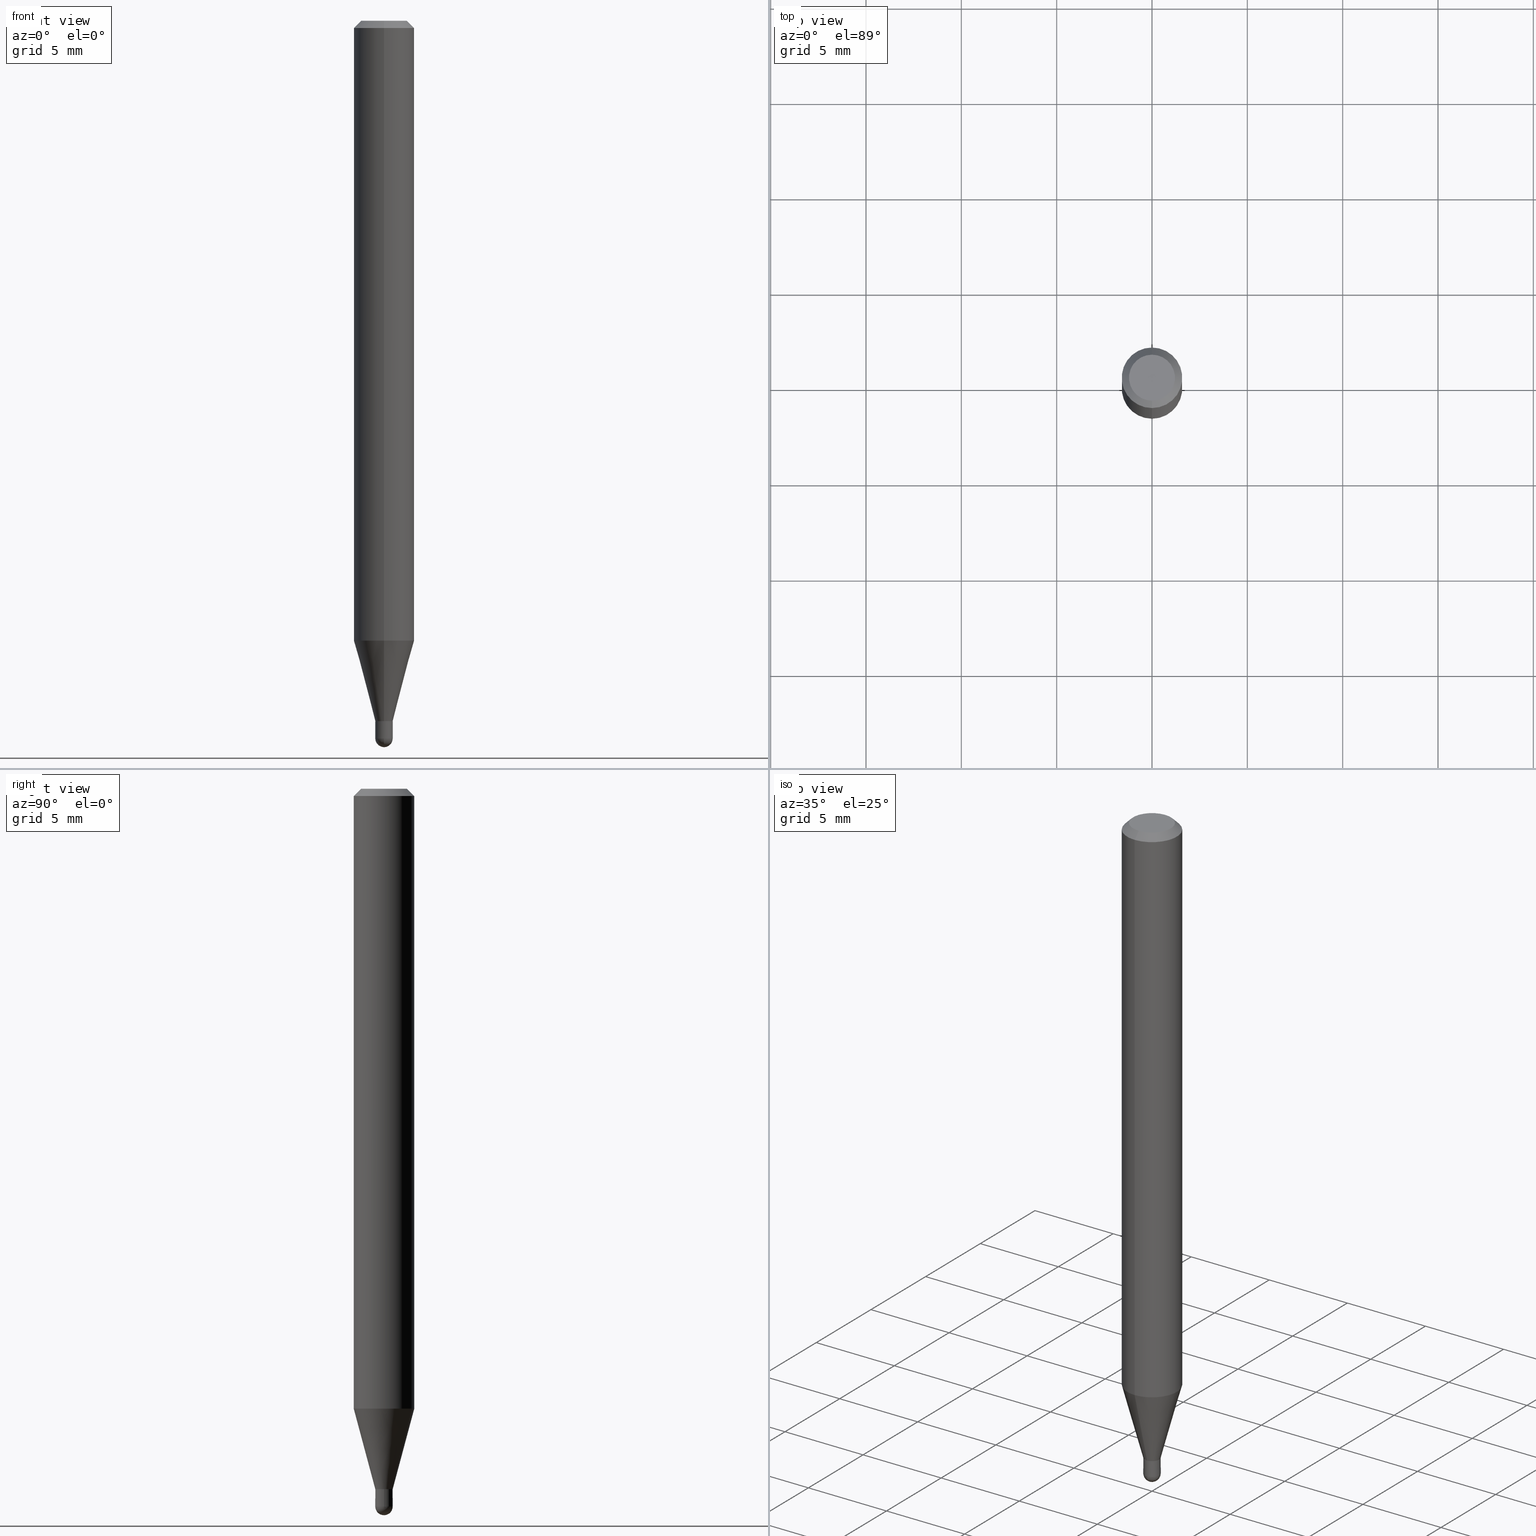
[diagram: canonical four-view strip — front | top / right | iso, engineering-drawing reading convention]
A machine part, canonical four-view strip (front | top / right | iso — engineering-drawing reading convention). The complete STEP part file that produces these views, byte-faithful:
ISO-10303-21;
HEADER;
FILE_DESCRIPTION (( 'STEP AP203' ),
    '1' );
FILE_NAME ('01393.STEP',
    '2024-03-07T20:17:46',
    ( '' ),
    ( '' ),
    'SwSTEP 2.0',
    'SolidWorks 2023',
    '' );
FILE_SCHEMA (( 'CONFIG_CONTROL_DESIGN' ));
ENDSEC;

DATA;
#1 = CC_DESIGN_PERSON_AND_ORGANIZATION_ASSIGNMENT ( #335, #289, ( #371 ) ) ;
#2 = MANIFOLD_SOLID_BREP ( 'Body-Move/Copy2[2]', #9 ) ;
#3 = DATE_TIME_ROLE ( 'creation_date' ) ;
#4 = APPROVAL_ROLE ( '' ) ;
#5 = DIRECTION ( 'NONE',  ( -2.445478890525876859E-29, 3.491466897493240330E-15, 1.000000000000000000 ) ) ;
#6 = CIRCLE ( 'NONE', #180, 0.01799999999999992231 ) ;
#7 = ORIENTED_EDGE ( 'NONE', *, *, #441, .F. ) ;
#8 = CC_DESIGN_APPROVAL ( #211, ( #293 ) ) ;
#9 = CLOSED_SHELL ( 'NONE', ( #398, #179, #162, #192, #154, #71, #419, #474, #144, #227, #459, #254 ) ) ;
#10 = DIRECTION ( 'NONE',  ( -2.445478890525876859E-29, 3.491466897493240330E-15, 1.000000000000000000 ) ) ;
#11 = CONICAL_SURFACE ( 'NONE', #222, 0.06250000000000000000, 0.7853981633974483900 ) ;
#12 = FACE_OUTER_BOUND ( 'NONE', #223, .T. ) ;
#13 = ORIENTED_EDGE ( 'NONE', *, *, #172, .F. ) ;
#14 = EDGE_CURVE ( 'NONE', #255, #416, #169, .T. ) ;
#15 = APPROVAL_DATE_TIME ( #365, #512 ) ;
#16 = ADVANCED_BREP_SHAPE_REPRESENTATION ( '01393', ( #161, #2, #89 ), #47 ) ;
#17 = FACE_OUTER_BOUND ( 'NONE', #378, .T. ) ;
#18 = DIRECTION ( 'NONE',  ( 1.000000000000000000, -6.982962677686280121E-15, 0.000000000000000000 ) ) ;
#19 = DIRECTION ( 'NONE',  ( -2.445478890525876859E-29, 3.491466897493240330E-15, 1.000000000000000000 ) ) ;
#20 = DIRECTION ( 'NONE',  ( -2.445478890525876859E-29, 3.491466897493240330E-15, 1.000000000000000000 ) ) ;
#21 = DIRECTION ( 'NONE',  ( -2.445468806185136597E-29, 3.491481338843145583E-15, 1.000000000000000000 ) ) ;
#22 = EDGE_CURVE ( 'NONE', #140, #220, #475, .T. ) ;
#23 = CARTESIAN_POINT ( 'NONE',  ( 3.624184770766373010E-29, -5.174375344165542471E-15, -1.482000000000000206 ) ) ;
#24 = AXIS2_PLACEMENT_3D ( 'NONE', #343, #501, #431 ) ;
#25 = ORIENTED_EDGE ( 'NONE', *, *, #498, .F. ) ;
#26 = APPLICATION_CONTEXT ( 'configuration controlled 3d designs of mechanical parts and assemblies' ) ;
#27 = PRODUCT_DEFINITION_SHAPE ( 'NONE', 'NONE',  #293 ) ;
#28 = ORIENTED_EDGE ( 'NONE', *, *, #37, .T. ) ;
#29 = ORIENTED_EDGE ( 'NONE', *, *, #453, .T. ) ;
#30 = ORIENTED_EDGE ( 'NONE', *, *, #380, .T. ) ;
#31 = DIRECTION ( 'NONE',  ( 0.000000000000000000, 0.000000000000000000, 1.000000000000000000 ) ) ;
#32 = CONICAL_SURFACE ( 'NONE', #121, 0.01799999999999992231, 0.2617993877991576235 ) ;
#33 = CC_DESIGN_APPROVAL ( #512, ( #114 ) ) ;
#34 = AXIS2_PLACEMENT_3D ( 'NONE', #481, #173, #245 ) ;
#35 = ORIENTED_EDGE ( 'NONE', *, *, #434, .F. ) ;
#36 = DIRECTION ( 'NONE',  ( -2.445478890525876859E-29, 3.491466897493240330E-15, 1.000000000000000000 ) ) ;
#37 = EDGE_CURVE ( 'NONE', #274, #183, #137, .T. ) ;
#38 = FACE_OUTER_BOUND ( 'NONE', #496, .T. ) ;
#39 = CARTESIAN_POINT ( 'NONE',  ( -0.01799999999999999864, -4.983630987629547040E-15, -1.446000000000000174 ) ) ;
#40 = PLANE ( 'NONE',  #194 ) ;
#41 = CARTESIAN_POINT ( 'NONE',  ( 0.000000000000000000, 0.000000000000000000, 0.000000000000000000 ) ) ;
#42 = LINE ( 'NONE', #354, #188 ) ;
#43 = EDGE_LOOP ( 'NONE', ( #147, #68 ) ) ;
#44 = DIRECTION ( 'NONE',  ( -2.445468806185136597E-29, 3.491481338843145583E-15, 1.000000000000000000 ) ) ;
#45 = AXIS2_PLACEMENT_3D ( 'NONE', #149, #305, #308 ) ;
#46 = ORIENTED_EDGE ( 'NONE', *, *, #341, .T. ) ;
#47 =( GEOMETRIC_REPRESENTATION_CONTEXT ( 3 ) GLOBAL_UNCERTAINTY_ASSIGNED_CONTEXT ( ( #241 ) ) GLOBAL_UNIT_ASSIGNED_CONTEXT ( ( #412, #406, #366 ) ) REPRESENTATION_CONTEXT ( 'NONE', 'WORKASPACE' ) );
#48 = AXIS2_PLACEMENT_3D ( 'NONE', #124, #372, #252 ) ;
#49 = DIRECTION ( 'NONE',  ( -2.445478890525876859E-29, 3.491466897493240330E-15, 1.000000000000000000 ) ) ;
#50 = EDGE_CURVE ( 'NONE', #274, #297, #374, .T. ) ;
#51 = CARTESIAN_POINT ( 'NONE',  ( 2.166940203591214457E-46, -3.093790757710868312E-32, -8.861005555951596443E-18 ) ) ;
#52 = CARTESIAN_POINT ( 'NONE',  ( 3.624184770766373010E-29, -5.174375344165542471E-15, -1.482000000000000206 ) ) ;
#53 = DIRECTION ( 'NONE',  ( -2.445478890525876859E-29, 3.491466897493240330E-15, 1.000000000000000000 ) ) ;
#54 = DIRECTION ( 'NONE',  ( -4.937700262164674260E-15, -0.7071067811865632269, 0.7071067811865319186 ) ) ;
#55 = DIRECTION ( 'NONE',  ( -6.982962677686265922E-15, -1.000000000000000000, 0.000000000000000000 ) ) ;
#56 = DIRECTION ( 'NONE',  ( 2.445478890525876859E-29, -3.491466897493240330E-15, -1.000000000000000000 ) ) ;
#57 = DIRECTION ( 'NONE',  ( -6.982962677686266711E-15, -1.000000000000000000, 3.491466897493240724E-15 ) ) ;
#58 = CARTESIAN_POINT ( 'NONE',  ( -1.256933281983168751E-16, -0.01800000000000497383, -1.446000000000000396 ) ) ;
#59 = ADVANCED_FACE ( 'NONE', ( #17 ), #282, .T. ) ;
#60 = CIRCLE ( 'NONE', #48, 0.01800000000000009578 ) ;
#61 = ORIENTED_EDGE ( 'NONE', *, *, #469, .F. ) ;
#62 = PERSON_AND_ORGANIZATION ( #203, #280 ) ;
#63 = VERTEX_POINT ( 'NONE', #483 ) ;
#64 = COORDINATED_UNIVERSAL_TIME_OFFSET ( 5, 0, .BEHIND. ) ;
#65 = ORIENTED_EDGE ( 'NONE', *, *, #380, .F. ) ;
#66 = AXIS2_PLACEMENT_3D ( 'NONE', #231, #155, #392 ) ;
#67 = CC_DESIGN_PERSON_AND_ORGANIZATION_ASSIGNMENT ( #201, #387, ( #105 ) ) ;
#68 = ORIENTED_EDGE ( 'NONE', *, *, #360, .F. ) ;
#69 = EDGE_LOOP ( 'NONE', ( #25, #333, #238, #424 ) ) ;
#70 = CIRCLE ( 'NONE', #45, 0.01799999999999992231 ) ;
#71 = ADVANCED_FACE ( 'NONE', ( #244 ), #263, .T. ) ;
#72 = VECTOR ( 'NONE', #206, 39.37007874015748143 ) ;
#73 = AXIS2_PLACEMENT_3D ( 'NONE', #41, #195, #236 ) ;
#74 = ORIENTED_EDGE ( 'NONE', *, *, #324, .T. ) ;
#75 = DIRECTION ( 'NONE',  ( -2.445468806185136877E-29, 3.491481338843145188E-15, 1.000000000000000000 ) ) ;
#76 = DIRECTION ( 'NONE',  ( -2.445478890525876859E-29, 3.491466897493240330E-15, 1.000000000000000000 ) ) ;
#77 = PERSON_AND_ORGANIZATION ( #203, #280 ) ;
#78 = EDGE_CURVE ( 'NONE', #220, #140, #492, .T. ) ;
#79 = CALENDAR_DATE ( 2024, 7, 3 ) ;
#80 = DIRECTION ( 'NONE',  ( -2.445478890525876859E-29, 3.491466897493240330E-15, 1.000000000000000000 ) ) ;
#81 = PERSON_AND_ORGANIZATION ( #203, #280 ) ;
#82 = DIRECTION ( 'NONE',  ( 4.937700262164548042E-15, 0.7071067811865451302, -0.7071067811865499042 ) ) ;
#83 = ORIENTED_EDGE ( 'NONE', *, *, #486, .F. ) ;
#84 = LINE ( 'NONE', #133, #150 ) ;
#85 = ORIENTED_EDGE ( 'NONE', *, *, #422, .T. ) ;
#86 = DIRECTION ( 'NONE',  ( -6.982962677686265922E-15, -1.000000000000000000, 0.000000000000000000 ) ) ;
#87 = EDGE_CURVE ( 'NONE', #271, #500, #151, .T. ) ;
#88 = AXIS2_PLACEMENT_3D ( 'NONE', #369, #19, #444 ) ;
#89 = AXIS2_PLACEMENT_3D ( 'NONE', #379, #31, #340 ) ;
#90 = FACE_OUTER_BOUND ( 'NONE', #181, .T. ) ;
#91 = AXIS2_PLACEMENT_3D ( 'NONE', #96, #248, #411 ) ;
#92 = CARTESIAN_POINT ( 'NONE',  ( 4.440892098500625669E-16, 0.06250000000000000000, -2.182166810933275206E-16 ) ) ;
#93 = CARTESIAN_POINT ( 'NONE',  ( 2.166940203591214457E-46, -3.093790757710868312E-32, -8.861005555951596443E-18 ) ) ;
#94 = DIRECTION ( 'NONE',  ( -6.982962677686265922E-15, -1.000000000000000000, 0.000000000000000000 ) ) ;
#95 = DIRECTION ( 'NONE',  ( 1.839019923739650408E-15, 0.2588190451025320082, 0.9659258262890650926 ) ) ;
#96 = CARTESIAN_POINT ( 'NONE',  ( 3.536147893743707559E-29, -5.048682015967188692E-15, -1.446000000000000174 ) ) ;
#97 = CC_DESIGN_PERSON_AND_ORGANIZATION_ASSIGNMENT ( #77, #391, ( #371 ) ) ;
#98 = DIRECTION ( 'NONE',  ( -6.982962677686265922E-15, -1.000000000000000000, 3.483106191921935554E-15 ) ) ;
#99 = DIRECTION ( 'NONE',  ( -4.851104656540964275E-15, -0.7071067811865500152, -0.7071067811865450192 ) ) ;
#100 = CIRCLE ( 'NONE', #447, 0.06250000000000000000 ) ;
#101 = ORIENTED_EDGE ( 'NONE', *, *, #139, .F. ) ;
#102 = DIRECTION ( 'NONE',  ( -6.982962677686265922E-15, -1.000000000000000000, 0.000000000000000000 ) ) ;
#103 = ORIENTED_EDGE ( 'NONE', *, *, #78, .T. ) ;
#104 = EDGE_CURVE ( 'NONE', #403, #399, #510, .T. ) ;
#105 = PRODUCT ( '01393', '01393', '', ( #306 ) ) ;
#106 = CIRCLE ( 'NONE', #389, 0.01799999999999992231 ) ;
#107 = DESIGN_CONTEXT ( 'detailed design', #26, 'design' ) ;
#108 = ORIENTED_EDGE ( 'NONE', *, *, #268, .F. ) ;
#109 = EDGE_LOOP ( 'NONE', ( #342, #286, #396, #507 ) ) ;
#110 = ADVANCED_FACE ( 'NONE', ( #304 ), #436, .F. ) ;
#111 = ORIENTED_EDGE ( 'NONE', *, *, #139, .T. ) ;
#112 = VECTOR ( 'NONE', #54, 39.37007874015748143 ) ;
#113 = CARTESIAN_POINT ( 'NONE',  ( 3.668218335788817846E-31, -5.237200346239863576E-17, -0.01500000000000000812 ) ) ;
#114 = SECURITY_CLASSIFICATION ( '', '', #461 ) ;
#115 = DATE_AND_TIME ( #79, #382 ) ;
#116 = CARTESIAN_POINT ( 'NONE',  ( 0.000000000000000000, 0.000000000000000000, 0.000000000000000000 ) ) ;
#117 = ORIENTED_EDGE ( 'NONE', *, *, #341, .F. ) ;
#118 = DIRECTION ( 'NONE',  ( 2.445478890525876859E-29, -3.491466897493240330E-15, -1.000000000000000000 ) ) ;
#119 = CARTESIAN_POINT ( 'NONE',  ( -1.256933281983173188E-16, -0.01800000000000503281, -1.445500000000000229 ) ) ;
#120 = DIRECTION ( 'NONE',  ( 6.982962677686265922E-15, 1.000000000000000000, -3.491466897493240330E-15 ) ) ;
#121 = AXIS2_PLACEMENT_3D ( 'NONE', #224, #146, #298 ) ;
#122 = DIRECTION ( 'NONE',  ( -2.445468806185136877E-29, 3.491481338843145188E-15, 1.000000000000000000 ) ) ;
#123 = ORIENTED_EDGE ( 'NONE', *, *, #299, .F. ) ;
#124 = CARTESIAN_POINT ( 'NONE',  ( 3.622645471445850223E-29, -5.176579708404007627E-15, -1.482000000000000206 ) ) ;
#125 = CARTESIAN_POINT ( 'NONE',  ( -1.222018468594742870E-16, -0.01750000000000504971, -1.446000000000000174 ) ) ;
#126 = DIRECTION ( 'NONE',  ( -6.982962677686265922E-15, -1.000000000000000000, 0.000000000000000000 ) ) ;
#127 = DIRECTION ( 'NONE',  ( -2.445478890525876859E-29, 3.491466897493240330E-15, 1.000000000000000000 ) ) ;
#128 = SHAPE_DEFINITION_REPRESENTATION ( #27, #16 ) ;
#129 = APPROVAL_PERSON_ORGANIZATION ( #81, #211, #4 ) ;
#130 = DIRECTION ( 'NONE',  ( -2.445468806185136597E-29, 3.491481338843145583E-15, 1.000000000000000000 ) ) ;
#131 = AXIS2_PLACEMENT_3D ( 'NONE', #465, #234, #473 ) ;
#132 = CARTESIAN_POINT ( 'NONE',  ( 3.668218335788817846E-31, -5.237200346239863576E-17, -0.01500000000000000812 ) ) ;
#133 = CARTESIAN_POINT ( 'NONE',  ( 4.364351673553919652E-16, 0.06249999999999995143, -0.01500000000000022669 ) ) ;
#134 = EDGE_LOOP ( 'NONE', ( #426, #457, #13, #123 ) ) ;
#135 = AXIS2_PLACEMENT_3D ( 'NONE', #113, #36, #229 ) ;
#136 = LOCAL_TIME ( 15, 17, 46.00000000000000000, #418 ) ;
#137 = CIRCLE ( 'NONE', #303, 0.04749999999999999362 ) ;
#138 = VECTOR ( 'NONE', #357, 39.37007874015748143 ) ;
#139 = EDGE_CURVE ( 'NONE', #399, #182, #347, .T. ) ;
#140 = VERTEX_POINT ( 'NONE', #39 ) ;
#141 = ORIENTED_EDGE ( 'NONE', *, *, #324, .F. ) ;
#142 = VECTOR ( 'NONE', #448, 39.37007874015748143 ) ;
#143 = ORIENTED_EDGE ( 'NONE', *, *, #184, .F. ) ;
#144 = ADVANCED_FACE ( 'NONE', ( #395 ), #40, .F. ) ;
#145 = ORIENTED_EDGE ( 'NONE', *, *, #268, .T. ) ;
#146 = DIRECTION ( 'NONE',  ( -2.445478890525876859E-29, 3.491466897493240330E-15, 1.000000000000000000 ) ) ;
#147 = ORIENTED_EDGE ( 'NONE', *, *, #87, .F. ) ;
#148 = CARTESIAN_POINT ( 'NONE',  ( -0.01799999999999999864, 1.278976924368180238E-16, -8.854083162458829188E-31 ) ) ;
#149 = CARTESIAN_POINT ( 'NONE',  ( 3.536162475700418200E-29, -5.048661133775227252E-15, -1.446000000000000396 ) ) ;
#150 = VECTOR ( 'NONE', #82, 39.37007874015748143 ) ;
#151 = CIRCLE ( 'NONE', #450, 0.01749999999999999820 ) ;
#152 = APPROVAL_DATE_TIME ( #511, #309 ) ;
#153 = CARTESIAN_POINT ( 'NONE',  ( -1.256933281983168751E-16, -0.01800000000000522016, -1.482000000000000206 ) ) ;
#154 = ADVANCED_FACE ( 'NONE', ( #199 ), #32, .T. ) ;
#155 = DIRECTION ( 'NONE',  ( 2.438088387897960049E-29, -3.491481338843145188E-15, -1.000000000000000000 ) ) ;
#156 = CYLINDRICAL_SURFACE ( 'NONE', #73, 0.01799999999999999864 ) ;
#157 = DIRECTION ( 'NONE',  ( 2.445478890525876579E-29, -3.491466897493240330E-15, -1.000000000000000000 ) ) ;
#158 = COORDINATED_UNIVERSAL_TIME_OFFSET ( 5, 0, .BEHIND. ) ;
#159 = DIRECTION ( 'NONE',  ( -6.982962677686265922E-15, -1.000000000000000000, 3.491466897493240330E-15 ) ) ;
#160 = CARTESIAN_POINT ( 'NONE',  ( 3.536162475700417639E-29, -5.048661133775225674E-15, -1.446000000000000174 ) ) ;
#161 = MANIFOLD_SOLID_BREP ( 'Body-Move/Copy2[1]', #251 ) ;
#162 = ADVANCED_FACE ( 'NONE', ( #383 ), #11, .T. ) ;
#163 = VECTOR ( 'NONE', #75, 39.37007874015748143 ) ;
#164 = CALENDAR_DATE ( 2024, 7, 3 ) ;
#165 = CARTESIAN_POINT ( 'NONE',  ( 1.278976924368523885E-16, 0.01799999999999481529, -1.445500000000000229 ) ) ;
#166 = DIRECTION ( 'NONE',  ( 1.000000000000000000, -6.982962677686279332E-15, 0.000000000000000000 ) ) ;
#167 = DIRECTION ( 'NONE',  ( -6.982962677686265922E-15, -1.000000000000000000, 4.370956789862821150E-15 ) ) ;
#168 = CARTESIAN_POINT ( 'NONE',  ( -1.222018468594742870E-16, -0.01750000000000504971, -1.446000000000000174 ) ) ;
#169 = LINE ( 'NONE', #58, #72 ) ;
#170 = CIRCLE ( 'NONE', #313, 0.06250000000000000000 ) ;
#171 = CARTESIAN_POINT ( 'NONE',  ( 3.534939736255155327E-29, -5.046915400326479172E-15, -1.445500000000000229 ) ) ;
#172 = EDGE_CURVE ( 'NONE', #297, #63, #381, .T. ) ;
#173 = DIRECTION ( 'NONE',  ( -2.445478890525876859E-29, 3.491466897493240330E-15, 1.000000000000000000 ) ) ;
#174 = EDGE_LOOP ( 'NONE', ( #35, #491, #339, #61 ) ) ;
#175 = DATE_TIME_ROLE ( 'classification_date' ) ;
#176 = DIRECTION ( 'NONE',  ( -2.445468806185136597E-29, 3.491481338843145583E-15, 1.000000000000000000 ) ) ;
#177 = CARTESIAN_POINT ( 'NONE',  ( 3.130026485361983037E-29, -4.468811366254904827E-15, -1.279923739063190569 ) ) ;
#178 = CIRCLE ( 'NONE', #314, 0.01799999999999999517 ) ;
#179 = ADVANCED_FACE ( 'NONE', ( #191 ), #332, .T. ) ;
#180 = AXIS2_PLACEMENT_3D ( 'NONE', #257, #420, #86 ) ;
#181 = EDGE_LOOP ( 'NONE', ( #235, #414, #145, #421 ) ) ;
#182 = VERTEX_POINT ( 'NONE', #267 ) ;
#183 = VERTEX_POINT ( 'NONE', #388 ) ;
#184 = EDGE_CURVE ( 'NONE', #189, #140, #265, .T. ) ;
#185 = CC_DESIGN_APPROVAL ( #309, ( #371 ) ) ;
#186 = VERTEX_POINT ( 'NONE', #226 ) ;
#187 = ORIENTED_EDGE ( 'NONE', *, *, #503, .F. ) ;
#188 = VECTOR ( 'NONE', #5, 39.37007874015748143 ) ;
#189 = VERTEX_POINT ( 'NONE', #385 ) ;
#190 = ORIENTED_EDGE ( 'NONE', *, *, #217, .F. ) ;
#191 = FACE_OUTER_BOUND ( 'NONE', #109, .T. ) ;
#192 = ADVANCED_FACE ( 'NONE', ( #470 ), #433, .T. ) ;
#193 = CYLINDRICAL_SURFACE ( 'NONE', #415, 0.01799999999999992231 ) ;
#194 = AXIS2_PLACEMENT_3D ( 'NONE', #307, #157, #120 ) ;
#195 = DIRECTION ( 'NONE',  ( -2.445468806185136597E-29, 3.491481338843145583E-15, 1.000000000000000000 ) ) ;
#196 = EDGE_LOOP ( 'NONE', ( #225, #337, #417, #141, #302 ) ) ;
#197 = CARTESIAN_POINT ( 'NONE',  ( 3.624184770766373010E-29, -5.174375344165542471E-15, -1.482000000000000206 ) ) ;
#198 = CYLINDRICAL_SURFACE ( 'NONE', #261, 0.01799999999999999864 ) ;
#199 = FACE_OUTER_BOUND ( 'NONE', #463, .T. ) ;
#200 = ORIENTED_EDGE ( 'NONE', *, *, #319, .F. ) ;
#201 = PERSON_AND_ORGANIZATION ( #203, #280 ) ;
#202 = CYLINDRICAL_SURFACE ( 'NONE', #88, 0.01799999999999992231 ) ;
#203 = PERSON ( 'UNSPECIFIED', 'UNSPECIFIED', 'UNSPECIFIED', ('UNSPECIFIED'), ('UNSPECIFIED'), ('UNSPECIFIED') ) ;
#204 = CC_DESIGN_SECURITY_CLASSIFICATION ( #114, ( #371 ) ) ;
#205 = AXIS2_PLACEMENT_3D ( 'NONE', #451, #284, #94 ) ;
#206 = DIRECTION ( 'NONE',  ( -1.807323732225379838E-15, -0.2588190451025252914, 0.9659258262890670910 ) ) ;
#207 = CIRCLE ( 'NONE', #218, 0.01799999999999999517 ) ;
#208 = CARTESIAN_POINT ( 'NONE',  ( 4.440892098500936776E-16, 0.06249999999999551747, -1.279923739063190791 ) ) ;
#209 = DIRECTION ( 'NONE',  ( -6.982962677686266711E-15, -1.000000000000000000, 3.491466897493240724E-15 ) ) ;
#210 = CARTESIAN_POINT ( 'NONE',  ( -4.364351673553916201E-16, -0.06250000000000000000, 2.182166810933275206E-16 ) ) ;
#211 = APPROVAL ( #353, 'UNSPECIFIED' ) ;
#212 = CARTESIAN_POINT ( 'NONE',  ( 0.000000000000000000, 0.000000000000000000, 0.000000000000000000 ) ) ;
#213 = DIRECTION ( 'NONE',  ( -1.000000000000000000, 6.982962677686265922E-15, -4.883557194083112340E-29 ) ) ;
#214 = CARTESIAN_POINT ( 'NONE',  ( 3.536162475700417639E-29, -5.048661133775225674E-15, -1.446000000000000174 ) ) ;
#215 = ORIENTED_EDGE ( 'NONE', *, *, #243, .T. ) ;
#216 = DATE_AND_TIME ( #219, #288 ) ;
#217 = EDGE_CURVE ( 'NONE', #423, #294, #322, .T. ) ;
#218 = AXIS2_PLACEMENT_3D ( 'NONE', #197, #352, #275 ) ;
#219 = CALENDAR_DATE ( 2024, 7, 3 ) ;
#220 = VERTEX_POINT ( 'NONE', #247 ) ;
#221 = ORIENTED_EDGE ( 'NONE', *, *, #50, .T. ) ;
#222 = AXIS2_PLACEMENT_3D ( 'NONE', #464, #118, #471 ) ;
#223 = EDGE_LOOP ( 'NONE', ( #200, #83, #30, #495 ) ) ;
#224 = CARTESIAN_POINT ( 'NONE',  ( 3.536162475700418200E-29, -5.048661133775227252E-15, -1.446000000000000396 ) ) ;
#225 = ORIENTED_EDGE ( 'NONE', *, *, #469, .T. ) ;
#226 = CARTESIAN_POINT ( 'NONE',  ( 1.278976924368545579E-16, 0.01799999999999487080, -1.482000000000000206 ) ) ;
#227 = ADVANCED_FACE ( 'NONE', ( #485 ), #242, .F. ) ;
#228 = DIRECTION ( 'NONE',  ( -6.982962677686265922E-15, -1.000000000000000000, 3.491466897493240724E-15 ) ) ;
#229 = DIRECTION ( 'NONE',  ( -6.982962677686265922E-15, -1.000000000000000000, 3.483106191921935554E-15 ) ) ;
#230 = CONICAL_SURFACE ( 'NONE', #329, 0.06250000000000000000, 0.7853981633974483900 ) ;
#231 = CARTESIAN_POINT ( 'NONE',  ( 1.256933281983881437E-16, 0.01799999999999494713, -1.446000000000000174 ) ) ;
#232 = PERSON_AND_ORGANIZATION ( #203, #280 ) ;
#233 = CC_DESIGN_PERSON_AND_ORGANIZATION_ASSIGNMENT ( #62, #256, ( #114 ) ) ;
#234 = DIRECTION ( 'NONE',  ( -2.445468806185136597E-29, 3.491481338843145583E-15, 1.000000000000000000 ) ) ;
#235 = ORIENTED_EDGE ( 'NONE', *, *, #50, .F. ) ;
#236 = DIRECTION ( 'NONE',  ( 1.000000000000000000, -6.982962677686266711E-15, 4.876176775795935232E-29 ) ) ;
#237 = CARTESIAN_POINT ( 'NONE',  ( -3.773273898774340269E-16, -0.04749999999999999362, 1.569836720749773177E-16 ) ) ;
#238 = ORIENTED_EDGE ( 'NONE', *, *, #336, .T. ) ;
#239 = CARTESIAN_POINT ( 'NONE',  ( 1.278976924368528323E-16, 0.01799999999999487427, -1.446000000000000396 ) ) ;
#240 = LOCAL_TIME ( 15, 17, 46.00000000000000000, #310 ) ;
#241 = UNCERTAINTY_MEASURE_WITH_UNIT (LENGTH_MEASURE( 1.000000000000000082E-05 ), #412, 'distance_accuracy_value', 'NONE');
#242 = PLANE ( 'NONE',  #458 ) ;
#243 = EDGE_CURVE ( 'NONE', #183, #274, #493, .T. ) ;
#244 = FACE_OUTER_BOUND ( 'NONE', #506, .T. ) ;
#245 = DIRECTION ( 'NONE',  ( -6.982962677686265922E-15, -1.000000000000000000, 0.000000000000000000 ) ) ;
#246 = CARTESIAN_POINT ( 'NONE',  ( 3.536162475700418200E-29, -5.048661133775227252E-15, -1.446000000000000396 ) ) ;
#247 = CARTESIAN_POINT ( 'NONE',  ( 0.01799999999999999864, -5.174375344165541682E-15, -1.446000000000000174 ) ) ;
#248 = DIRECTION ( 'NONE',  ( -2.445468806185136597E-29, 3.491481338843145583E-15, 1.000000000000000000 ) ) ;
#249 = DIRECTION ( 'NONE',  ( 5.024295867788190974E-15, 0.7071067811865681119, 0.7071067811865270336 ) ) ;
#250 = AXIS2_PLACEMENT_3D ( 'NONE', #479, #344, #505 ) ;
#251 = CLOSED_SHELL ( 'NONE', ( #264, #59, #110, #279, #376 ) ) ;
#252 = DIRECTION ( 'NONE',  ( 7.105427357601000281E-15, 1.000000000000000000, 0.000000000000000000 ) ) ;
#253 = CONICAL_SURFACE ( 'NONE', #34, 0.01749999999999999820, 0.7853981633974739252 ) ;
#254 = ADVANCED_FACE ( 'NONE', ( #12 ), #202, .F. ) ;
#255 = VERTEX_POINT ( 'NONE', #273 ) ;
#256 = PERSON_AND_ORGANIZATION_ROLE ( 'classification_officer' ) ;
#257 = CARTESIAN_POINT ( 'NONE',  ( 3.534939736255155327E-29, -5.046915400326479172E-15, -1.445500000000000229 ) ) ;
#258 = LOCAL_TIME ( 15, 17, 46.00000000000000000, #158 ) ;
#259 = ORIENTED_EDGE ( 'NONE', *, *, #422, .F. ) ;
#260 = EDGE_CURVE ( 'NONE', #327, #430, #490, .T. ) ;
#261 = AXIS2_PLACEMENT_3D ( 'NONE', #488, #44, #442 ) ;
#262 = ORIENTED_EDGE ( 'NONE', *, *, #260, .T. ) ;
#263 = CONICAL_SURFACE ( 'NONE', #331, 0.01799999999999992231, 0.2617993877991576235 ) ;
#264 = ADVANCED_FACE ( 'NONE', ( #277 ), #198, .T. ) ;
#265 = LINE ( 'NONE', #148, #163 ) ;
#266 = APPROVAL_ROLE ( '' ) ;
#267 = CARTESIAN_POINT ( 'NONE',  ( 0.01799999999999999517, -5.237222008264718177E-15, -1.482000000000000206 ) ) ;
#268 = EDGE_CURVE ( 'NONE', #183, #63, #84, .T. ) ;
#269 = APPLICATION_PROTOCOL_DEFINITION ( 'international standard', 'config_control_design', 1994, #26 ) ;
#270 = AXIS2_PLACEMENT_3D ( 'NONE', #171, #449, #323 ) ;
#271 = VERTEX_POINT ( 'NONE', #168 ) ;
#272 = PRODUCT_RELATED_PRODUCT_CATEGORY ( 'detail', '', ( #105 ) ) ;
#273 = CARTESIAN_POINT ( 'NONE',  ( -1.256933281983168751E-16, -0.01800000000000497383, -1.446000000000000396 ) ) ;
#274 = VERTEX_POINT ( 'NONE', #237 ) ;
#275 = DIRECTION ( 'NONE',  ( 1.000000000000000000, -6.982962677686280121E-15, 0.000000000000000000 ) ) ;
#276 = LENGTH_MEASURE_WITH_UNIT ( LENGTH_MEASURE( 0.02539999999999999897 ), #487 );
#277 = FACE_OUTER_BOUND ( 'NONE', #196, .T. ) ;
#278 = VECTOR ( 'NONE', #95, 39.37007874015748854 ) ;
#279 = ADVANCED_FACE ( 'NONE', ( #407 ), #394, .T. ) ;
#280 = ORGANIZATION ( 'UNSPECIFIED', 'UNSPECIFIED', '' ) ;
#281 = AXIS2_PLACEMENT_3D ( 'NONE', #445, #213, #348 ) ;
#282 = SPHERICAL_SURFACE ( 'NONE', #205, 0.01800000000000009578 ) ;
#283 = DIRECTION ( 'NONE',  ( -6.982962677686265922E-15, -1.000000000000000000, 3.491466897493240330E-15 ) ) ;
#284 = DIRECTION ( 'NONE',  ( 1.000000000000000000, -6.982962677686265922E-15, 4.883557194083112901E-29 ) ) ;
#285 = ORIENTED_EDGE ( 'NONE', *, *, #299, .T. ) ;
#286 = ORIENTED_EDGE ( 'NONE', *, *, #498, .T. ) ;
#287 = AXIS2_PLACEMENT_3D ( 'NONE', #480, #401, #320 ) ;
#288 = LOCAL_TIME ( 15, 17, 46.00000000000000000, #64 ) ;
#289 = PERSON_AND_ORGANIZATION_ROLE ( 'design_supplier' ) ;
#290 = FACE_OUTER_BOUND ( 'NONE', #69, .T. ) ;
#291 = AXIS2_PLACEMENT_3D ( 'NONE', #160, #49, #102 ) ;
#292 = EDGE_LOOP ( 'NONE', ( #103, #452 ) ) ;
#293 = PRODUCT_DEFINITION ( 'UNKNOWN', '', #371, #107 ) ;
#294 = VERTEX_POINT ( 'NONE', #208 ) ;
#295 = CC_DESIGN_DATE_AND_TIME_ASSIGNMENT ( #216, #175, ( #114 ) ) ;
#296 = APPROVAL_STATUS ( 'not_yet_approved' ) ;
#297 = VERTEX_POINT ( 'NONE', #312 ) ;
#298 = DIRECTION ( 'NONE',  ( -6.982962677686265922E-15, -1.000000000000000000, 0.000000000000000000 ) ) ;
#299 = EDGE_CURVE ( 'NONE', #416, #297, #397, .T. ) ;
#300 = ORIENTED_EDGE ( 'NONE', *, *, #37, .F. ) ;
#301 = COORDINATED_UNIVERSAL_TIME_OFFSET ( 5, 0, .BEHIND. ) ;
#302 = ORIENTED_EDGE ( 'NONE', *, *, #390, .T. ) ;
#303 = AXIS2_PLACEMENT_3D ( 'NONE', #51, #321, #209 ) ;
#304 = FACE_OUTER_BOUND ( 'NONE', #292, .T. ) ;
#305 = DIRECTION ( 'NONE',  ( -2.445478890525876859E-29, 3.491466897493240330E-15, 1.000000000000000000 ) ) ;
#306 = MECHANICAL_CONTEXT ( 'NONE', #393, 'mechanical' ) ;
#307 = CARTESIAN_POINT ( 'NONE',  ( 3.316907271900976096E-16, 0.04749999999999999362, -1.702751804089047023E-16 ) ) ;
#308 = DIRECTION ( 'NONE',  ( -6.982962677686265922E-15, -1.000000000000000000, 0.000000000000000000 ) ) ;
#309 = APPROVAL ( #346, 'UNSPECIFIED' ) ;
#310 = COORDINATED_UNIVERSAL_TIME_OFFSET ( 5, 0, .BEHIND. ) ;
#311 = DATE_AND_TIME ( #164, #258 ) ;
#312 = CARTESIAN_POINT ( 'NONE',  ( -4.364351673553912750E-16, -0.06250000000000005551, -0.01499999999999979128 ) ) ;
#313 = AXIS2_PLACEMENT_3D ( 'NONE', #132, #53, #98 ) ;
#314 = AXIS2_PLACEMENT_3D ( 'NONE', #52, #21, #446 ) ;
#315 = APPLICATION_PROTOCOL_DEFINITION ( 'international standard', 'config_control_design', 1994, #393 ) ;
#316 = CARTESIAN_POINT ( 'NONE',  ( 3.665894260296921275E-29, -5.240528554622417490E-15, -1.500000000000000444 ) ) ;
#317 = LINE ( 'NONE', #125, #112 ) ;
#318 = CARTESIAN_POINT ( 'NONE',  ( 1.261213355974528514E-16, 0.01749999999999495015, -1.446000000000000174 ) ) ;
#319 = EDGE_CURVE ( 'NONE', #423, #327, #42, .T. ) ;
#320 = DIRECTION ( 'NONE',  ( -6.982962677686265922E-15, -1.000000000000000000, 0.000000000000000000 ) ) ;
#321 = DIRECTION ( 'NONE',  ( -2.445478890525876859E-29, 3.491466897493240330E-15, 1.000000000000000000 ) ) ;
#322 = LINE ( 'NONE', #239, #278 ) ;
#323 = DIRECTION ( 'NONE',  ( -6.982962677686265922E-15, -1.000000000000000000, 0.000000000000000000 ) ) ;
#324 = EDGE_CURVE ( 'NONE', #182, #220, #482, .T. ) ;
#325 = DIRECTION ( 'NONE',  ( -6.982962677686265922E-15, -1.000000000000000000, 0.000000000000000000 ) ) ;
#326 = CALENDAR_DATE ( 2024, 7, 3 ) ;
#327 = VERTEX_POINT ( 'NONE', #165 ) ;
#328 = CIRCLE ( 'NONE', #508, 0.06250000000000000000 ) ;
#329 = AXIS2_PLACEMENT_3D ( 'NONE', #456, #56, #455 ) ;
#330 = DIRECTION ( 'NONE',  ( -2.445478890525876859E-29, 3.491466897493240330E-15, 1.000000000000000000 ) ) ;
#331 = AXIS2_PLACEMENT_3D ( 'NONE', #408, #454, #55 ) ;
#332 = CONICAL_SURFACE ( 'NONE', #24, 0.01749999999999999820, 0.7853981633974739252 ) ;
#333 = ORIENTED_EDGE ( 'NONE', *, *, #360, .T. ) ;
#334 = ORIENTED_EDGE ( 'NONE', *, *, #14, .F. ) ;
#335 = PERSON_AND_ORGANIZATION ( #203, #280 ) ;
#336 = EDGE_CURVE ( 'NONE', #271, #430, #317, .T. ) ;
#337 = ORIENTED_EDGE ( 'NONE', *, *, #184, .T. ) ;
#338 = AXIS2_PLACEMENT_3D ( 'NONE', #23, #176, #18 ) ;
#339 = ORIENTED_EDGE ( 'NONE', *, *, #453, .F. ) ;
#340 = DIRECTION ( 'NONE',  ( 1.000000000000000000, 0.000000000000000000, 0.000000000000000000 ) ) ;
#341 = EDGE_CURVE ( 'NONE', #294, #416, #100, .T. ) ;
#342 = ORIENTED_EDGE ( 'NONE', *, *, #87, .T. ) ;
#343 = CARTESIAN_POINT ( 'NONE',  ( 3.536162475700417639E-29, -5.048661133775225674E-15, -1.446000000000000174 ) ) ;
#344 = DIRECTION ( 'NONE',  ( -2.445478890525876859E-29, 3.491466897493240330E-15, 1.000000000000000000 ) ) ;
#345 = EDGE_LOOP ( 'NONE', ( #300, #221, #377, #108 ) ) ;
#346 = APPROVAL_STATUS ( 'not_yet_approved' ) ;
#347 = CIRCLE ( 'NONE', #131, 0.01799999999999999517 ) ;
#348 = DIRECTION ( 'NONE',  ( -6.982962677686264344E-15, -1.000000000000000000, 0.000000000000000000 ) ) ;
#349 = CYLINDRICAL_SURFACE ( 'NONE', #250, 0.06250000000000000000 ) ;
#350 = CC_DESIGN_PERSON_AND_ORGANIZATION_ASSIGNMENT ( #351, #504, ( #293 ) ) ;
#351 = PERSON_AND_ORGANIZATION ( #203, #280 ) ;
#352 = DIRECTION ( 'NONE',  ( -2.445468806185136597E-29, 3.491481338843145583E-15, 1.000000000000000000 ) ) ;
#353 = APPROVAL_STATUS ( 'not_yet_approved' ) ;
#354 = CARTESIAN_POINT ( 'NONE',  ( 1.278976924368174815E-16, 0.01799999999999992231, -6.284640415487805969E-17 ) ) ;
#355 = ORIENTED_EDGE ( 'NONE', *, *, #22, .F. ) ;
#356 = FACE_OUTER_BOUND ( 'NONE', #384, .T. ) ;
#357 = DIRECTION ( 'NONE',  ( -2.445478890525876859E-29, 3.491466897493240330E-15, 1.000000000000000000 ) ) ;
#358 = AXIS2_PLACEMENT_3D ( 'NONE', #361, #130, #166 ) ;
#359 = AXIS2_PLACEMENT_3D ( 'NONE', #93, #10, #57 ) ;
#360 = EDGE_CURVE ( 'NONE', #500, #271, #402, .T. ) ;
#361 = CARTESIAN_POINT ( 'NONE',  ( 3.536147893743707559E-29, -5.048682015967188692E-15, -1.446000000000000174 ) ) ;
#362 = CARTESIAN_POINT ( 'NONE',  ( -4.287811248607203282E-16, -0.06250000000000005551, -0.01499999999999979128 ) ) ;
#363 = LINE ( 'NONE', #368, #467 ) ;
#364 = CARTESIAN_POINT ( 'NONE',  ( 3.536162475700417639E-29, -5.048661133775225674E-15, -1.446000000000000174 ) ) ;
#365 = DATE_AND_TIME ( #326, #136 ) ;
#366 =( NAMED_UNIT ( * ) SI_UNIT ( $, .STERADIAN. ) SOLID_ANGLE_UNIT ( ) );
#367 = CARTESIAN_POINT ( 'NONE',  ( 3.130026485361983037E-29, -4.468811366254904827E-15, -1.279923739063190569 ) ) ;
#368 = CARTESIAN_POINT ( 'NONE',  ( 1.243449787580528705E-16, 0.01749999999999495015, -1.446000000000000174 ) ) ;
#369 = CARTESIAN_POINT ( 'NONE',  ( 0.000000000000000000, 0.000000000000000000, 0.000000000000000000 ) ) ;
#370 = EDGE_CURVE ( 'NONE', #430, #327, #6, .T. ) ;
#371 = PRODUCT_DEFINITION_FORMATION_WITH_SPECIFIED_SOURCE ( 'ANY', '', #105, .NOT_KNOWN. ) ;
#372 = DIRECTION ( 'NONE',  ( 1.000000000000000000, -7.105427357601001070E-15, 4.926315508542082329E-29 ) ) ;
#373 = ORIENTED_EDGE ( 'NONE', *, *, #217, .T. ) ;
#374 = LINE ( 'NONE', #362, #428 ) ;
#375 = EDGE_LOOP ( 'NONE', ( #215, #28 ) ) ;
#376 = ADVANCED_FACE ( 'NONE', ( #356 ), #156, .T. ) ;
#377 = ORIENTED_EDGE ( 'NONE', *, *, #172, .T. ) ;
#378 = EDGE_LOOP ( 'NONE', ( #497, #438, #443, #101 ) ) ;
#379 = CARTESIAN_POINT ( 'NONE',  ( 0.000000000000000000, 0.000000000000000000, 0.000000000000000000 ) ) ;
#380 = EDGE_CURVE ( 'NONE', #255, #430, #432, .T. ) ;
#381 = CIRCLE ( 'NONE', #135, 0.06250000000000000000 ) ;
#382 = LOCAL_TIME ( 15, 17, 46.00000000000000000, #301 ) ;
#383 = FACE_OUTER_BOUND ( 'NONE', #345, .T. ) ;
#384 = EDGE_LOOP ( 'NONE', ( #143, #29, #111, #74, #355 ) ) ;
#385 = CARTESIAN_POINT ( 'NONE',  ( -0.01799999999999999517, -4.983630987629547040E-15, -1.482000000000000206 ) ) ;
#386 = CARTESIAN_POINT ( 'NONE',  ( -1.256933281983522506E-16, -0.01799999999999992231, 6.284640415487805969E-17 ) ) ;
#387 = PERSON_AND_ORGANIZATION_ROLE ( 'design_owner' ) ;
#388 = CARTESIAN_POINT ( 'NONE',  ( 3.840629472727447874E-16, 0.04749999999999999362, -1.747056831868805136E-16 ) ) ;
#389 = AXIS2_PLACEMENT_3D ( 'NONE', #246, #409, #126 ) ;
#390 = EDGE_CURVE ( 'NONE', #182, #186, #207, .T. ) ;
#391 = PERSON_AND_ORGANIZATION_ROLE ( 'creator' ) ;
#392 = DIRECTION ( 'NONE',  ( -1.000000000000000000, 6.982962677686265922E-15, -4.876176775795935793E-29 ) ) ;
#393 = APPLICATION_CONTEXT ( 'configuration controlled 3d designs of mechanical parts and assemblies' ) ;
#394 = SPHERICAL_SURFACE ( 'NONE', #287, 0.01800000000000009578 ) ;
#395 = FACE_OUTER_BOUND ( 'NONE', #375, .T. ) ;
#396 = ORIENTED_EDGE ( 'NONE', *, *, #370, .F. ) ;
#397 = LINE ( 'NONE', #210, #138 ) ;
#398 = ADVANCED_FACE ( 'NONE', ( #38 ), #193, .F. ) ;
#399 = VERTEX_POINT ( 'NONE', #153 ) ;
#400 = CIRCLE ( 'NONE', #338, 0.01799999999999999517 ) ;
#401 = DIRECTION ( 'NONE',  ( 1.000000000000000000, -6.982962677686265922E-15, 4.883557194083112901E-29 ) ) ;
#402 = CIRCLE ( 'NONE', #291, 0.01749999999999999820 ) ;
#403 = VERTEX_POINT ( 'NONE', #316 ) ;
#404 = ORIENTED_EDGE ( 'NONE', *, *, #489, .F. ) ;
#405 = DIRECTION ( 'NONE',  ( -2.445478890525876859E-29, 3.491466897493240330E-15, 1.000000000000000000 ) ) ;
#406 =( NAMED_UNIT ( * ) PLANE_ANGLE_UNIT ( ) SI_UNIT ( $, .RADIAN. ) );
#407 = FACE_OUTER_BOUND ( 'NONE', #174, .T. ) ;
#408 = CARTESIAN_POINT ( 'NONE',  ( 3.536162475700418200E-29, -5.048661133775227252E-15, -1.446000000000000396 ) ) ;
#409 = DIRECTION ( 'NONE',  ( -2.445478890525876859E-29, 3.491466897493240330E-15, 1.000000000000000000 ) ) ;
#410 = DIRECTION ( 'NONE',  ( -2.445478890525876579E-29, 3.491466897493240330E-15, 1.000000000000000000 ) ) ;
#411 = DIRECTION ( 'NONE',  ( 1.000000000000000000, -6.982962677686279332E-15, 0.000000000000000000 ) ) ;
#412 =( CONVERSION_BASED_UNIT ( 'INCH', #276 ) LENGTH_UNIT ( ) NAMED_UNIT ( #462 ) );
#413 = CC_DESIGN_DATE_AND_TIME_ASSIGNMENT ( #115, #3, ( #293 ) ) ;
#414 = ORIENTED_EDGE ( 'NONE', *, *, #243, .F. ) ;
#415 = AXIS2_PLACEMENT_3D ( 'NONE', #116, #76, #228 ) ;
#416 = VERTEX_POINT ( 'NONE', #435 ) ;
#417 = ORIENTED_EDGE ( 'NONE', *, *, #78, .F. ) ;
#418 = COORDINATED_UNIVERSAL_TIME_OFFSET ( 5, 0, .BEHIND. ) ;
#419 = ADVANCED_FACE ( 'NONE', ( #440 ), #349, .T. ) ;
#420 = DIRECTION ( 'NONE',  ( -2.445478890525876859E-29, 3.491466897493240330E-15, 1.000000000000000000 ) ) ;
#421 = ORIENTED_EDGE ( 'NONE', *, *, #489, .T. ) ;
#422 = EDGE_CURVE ( 'NONE', #423, #255, #70, .T. ) ;
#423 = VERTEX_POINT ( 'NONE', #472 ) ;
#424 = ORIENTED_EDGE ( 'NONE', *, *, #260, .F. ) ;
#425 = APPROVAL_ROLE ( '' ) ;
#426 = ORIENTED_EDGE ( 'NONE', *, *, #441, .T. ) ;
#427 = AXIS2_PLACEMENT_3D ( 'NONE', #212, #127, #159 ) ;
#428 = VECTOR ( 'NONE', #99, 39.37007874015748143 ) ;
#429 = VECTOR ( 'NONE', #80, 39.37007874015748143 ) ;
#430 = VERTEX_POINT ( 'NONE', #119 ) ;
#431 = DIRECTION ( 'NONE',  ( -6.982962677686265922E-15, -1.000000000000000000, 0.000000000000000000 ) ) ;
#432 = LINE ( 'NONE', #386, #429 ) ;
#433 = CYLINDRICAL_SURFACE ( 'NONE', #427, 0.06250000000000000000 ) ;
#434 = EDGE_CURVE ( 'NONE', #403, #186, #60, .T. ) ;
#435 = CARTESIAN_POINT ( 'NONE',  ( -4.364351673553604601E-16, -0.06250000000000448253, -1.279923739063190125 ) ) ;
#436 = PLANE ( 'NONE',  #66 ) ;
#437 = APPROVAL_PERSON_ORGANIZATION ( #232, #309, #266 ) ;
#438 = ORIENTED_EDGE ( 'NONE', *, *, #434, .T. ) ;
#439 = CALENDAR_DATE ( 2024, 7, 3 ) ;
#440 = FACE_OUTER_BOUND ( 'NONE', #499, .T. ) ;
#441 = EDGE_CURVE ( 'NONE', #416, #294, #328, .T. ) ;
#442 = DIRECTION ( 'NONE',  ( 1.000000000000000000, -6.982962677686266711E-15, 4.876176775795935232E-29 ) ) ;
#443 = ORIENTED_EDGE ( 'NONE', *, *, #390, .F. ) ;
#444 = DIRECTION ( 'NONE',  ( -6.982962677686265922E-15, -1.000000000000000000, 3.491466897493240724E-15 ) ) ;
#445 = CARTESIAN_POINT ( 'NONE',  ( 3.622645471445850223E-29, -5.176579708404007627E-15, -1.482000000000000206 ) ) ;
#446 = DIRECTION ( 'NONE',  ( 1.000000000000000000, -6.982962677686280121E-15, 0.000000000000000000 ) ) ;
#447 = AXIS2_PLACEMENT_3D ( 'NONE', #177, #330, #502 ) ;
#448 = DIRECTION ( 'NONE',  ( -2.445478890525876859E-29, 3.491466897493240330E-15, 1.000000000000000000 ) ) ;
#449 = DIRECTION ( 'NONE',  ( -2.445478890525876859E-29, 3.491466897493240330E-15, 1.000000000000000000 ) ) ;
#450 = AXIS2_PLACEMENT_3D ( 'NONE', #214, #20, #325 ) ;
#451 = CARTESIAN_POINT ( 'NONE',  ( 3.622645471445850223E-29, -5.176579708404007627E-15, -1.482000000000000206 ) ) ;
#452 = ORIENTED_EDGE ( 'NONE', *, *, #22, .T. ) ;
#453 = EDGE_CURVE ( 'NONE', #189, #399, #400, .T. ) ;
#454 = DIRECTION ( 'NONE',  ( -2.445478890525876859E-29, 3.491466897493240330E-15, 1.000000000000000000 ) ) ;
#455 = DIRECTION ( 'NONE',  ( 6.982962677686265922E-15, 1.000000000000000000, -3.483106191921935554E-15 ) ) ;
#456 = CARTESIAN_POINT ( 'NONE',  ( 3.668218335788817846E-31, -5.237200346239863576E-17, -0.01500000000000000812 ) ) ;
#457 = ORIENTED_EDGE ( 'NONE', *, *, #503, .T. ) ;
#458 = AXIS2_PLACEMENT_3D ( 'NONE', #364, #410, #283 ) ;
#459 = ADVANCED_FACE ( 'NONE', ( #290 ), #253, .T. ) ;
#460 = ORIENTED_EDGE ( 'NONE', *, *, #319, .T. ) ;
#461 = SECURITY_CLASSIFICATION_LEVEL ( 'unclassified' ) ;
#462 = DIMENSIONAL_EXPONENTS ( 1.000000000000000000, 0.000000000000000000, 0.000000000000000000, 0.000000000000000000, 0.000000000000000000, 0.000000000000000000, 0.000000000000000000 ) ;
#463 = EDGE_LOOP ( 'NONE', ( #468, #373, #7, #334 ) ) ;
#464 = CARTESIAN_POINT ( 'NONE',  ( 3.668218335788817846E-31, -5.237200346239863576E-17, -0.01500000000000000812 ) ) ;
#465 = CARTESIAN_POINT ( 'NONE',  ( 3.624184770766373010E-29, -5.174375344165542471E-15, -1.482000000000000206 ) ) ;
#466 = VECTOR ( 'NONE', #122, 39.37007874015748143 ) ;
#467 = VECTOR ( 'NONE', #249, 39.37007874015748143 ) ;
#468 = ORIENTED_EDGE ( 'NONE', *, *, #486, .T. ) ;
#469 = EDGE_CURVE ( 'NONE', #186, #189, #178, .T. ) ;
#470 = FACE_OUTER_BOUND ( 'NONE', #134, .T. ) ;
#471 = DIRECTION ( 'NONE',  ( 6.982962677686265922E-15, 1.000000000000000000, -3.483106191921935554E-15 ) ) ;
#472 = CARTESIAN_POINT ( 'NONE',  ( 2.859934511434734645E-16, 0.01799999999999487427, -1.446000000000000396 ) ) ;
#473 = DIRECTION ( 'NONE',  ( 1.000000000000000000, -6.982962677686280121E-15, 0.000000000000000000 ) ) ;
#474 = ADVANCED_FACE ( 'NONE', ( #90 ), #230, .T. ) ;
#475 = CIRCLE ( 'NONE', #358, 0.01799999999999999864 ) ;
#476 = APPROVAL_DATE_TIME ( #311, #211 ) ;
#477 = CARTESIAN_POINT ( 'NONE',  ( 0.01799999999999999864, -1.256933281983527929E-16, 8.777118196432682816E-31 ) ) ;
#478 = ORIENTED_EDGE ( 'NONE', *, *, #14, .T. ) ;
#479 = CARTESIAN_POINT ( 'NONE',  ( 0.000000000000000000, 0.000000000000000000, 0.000000000000000000 ) ) ;
#480 = CARTESIAN_POINT ( 'NONE',  ( 3.622645471445850223E-29, -5.176579708404007627E-15, -1.482000000000000206 ) ) ;
#481 = CARTESIAN_POINT ( 'NONE',  ( 3.536162475700417639E-29, -5.048661133775225674E-15, -1.446000000000000174 ) ) ;
#482 = LINE ( 'NONE', #477, #466 ) ;
#483 = CARTESIAN_POINT ( 'NONE',  ( 4.440892098500940720E-16, 0.06249999999999995143, -0.01500000000000022669 ) ) ;
#484 = LINE ( 'NONE', #92, #142 ) ;
#485 = FACE_OUTER_BOUND ( 'NONE', #43, .T. ) ;
#486 = EDGE_CURVE ( 'NONE', #255, #423, #106, .T. ) ;
#487 =( LENGTH_UNIT ( ) NAMED_UNIT ( * ) SI_UNIT ( $, .METRE. ) );
#488 = CARTESIAN_POINT ( 'NONE',  ( 0.000000000000000000, 0.000000000000000000, 0.000000000000000000 ) ) ;
#489 = EDGE_CURVE ( 'NONE', #63, #297, #170, .T. ) ;
#490 = CIRCLE ( 'NONE', #270, 0.01799999999999992231 ) ;
#491 = ORIENTED_EDGE ( 'NONE', *, *, #104, .T. ) ;
#492 = CIRCLE ( 'NONE', #91, 0.01799999999999999864 ) ;
#493 = CIRCLE ( 'NONE', #359, 0.04749999999999999362 ) ;
#494 = PERSON_AND_ORGANIZATION ( #203, #280 ) ;
#495 = ORIENTED_EDGE ( 'NONE', *, *, #370, .T. ) ;
#496 = EDGE_LOOP ( 'NONE', ( #259, #460, #262, #65 ) ) ;
#497 = ORIENTED_EDGE ( 'NONE', *, *, #104, .F. ) ;
#498 = EDGE_CURVE ( 'NONE', #500, #327, #363, .T. ) ;
#499 = EDGE_LOOP ( 'NONE', ( #187, #46, #285, #404 ) ) ;
#500 = VERTEX_POINT ( 'NONE', #318 ) ;
#501 = DIRECTION ( 'NONE',  ( -2.445478890525876859E-29, 3.491466897493240330E-15, 1.000000000000000000 ) ) ;
#502 = DIRECTION ( 'NONE',  ( -6.982962677686265922E-15, -1.000000000000000000, 4.370956789862821150E-15 ) ) ;
#503 = EDGE_CURVE ( 'NONE', #294, #63, #484, .T. ) ;
#504 = PERSON_AND_ORGANIZATION_ROLE ( 'creator' ) ;
#505 = DIRECTION ( 'NONE',  ( -6.982962677686265922E-15, -1.000000000000000000, 3.491466897493240330E-15 ) ) ;
#506 = EDGE_LOOP ( 'NONE', ( #190, #85, #478, #117 ) ) ;
#507 = ORIENTED_EDGE ( 'NONE', *, *, #336, .F. ) ;
#508 = AXIS2_PLACEMENT_3D ( 'NONE', #367, #405, #167 ) ;
#509 = APPROVAL_PERSON_ORGANIZATION ( #494, #512, #425 ) ;
#510 = CIRCLE ( 'NONE', #281, 0.01800000000000009578 ) ;
#511 = DATE_AND_TIME ( #439, #240 ) ;
#512 = APPROVAL ( #296, 'UNSPECIFIED' ) ;
ENDSEC;
END-ISO-10303-21;
